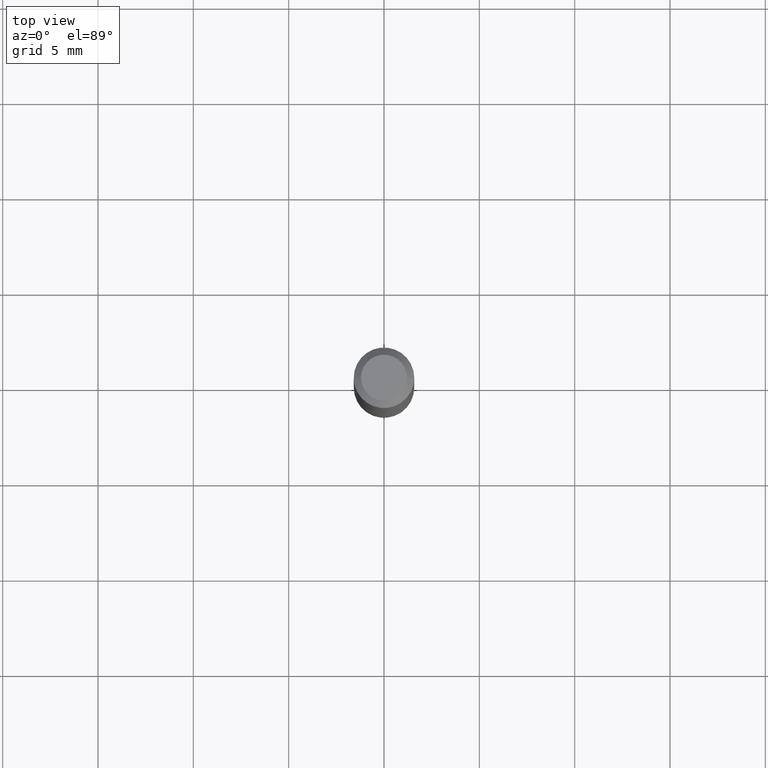
[diagram: clean part render]
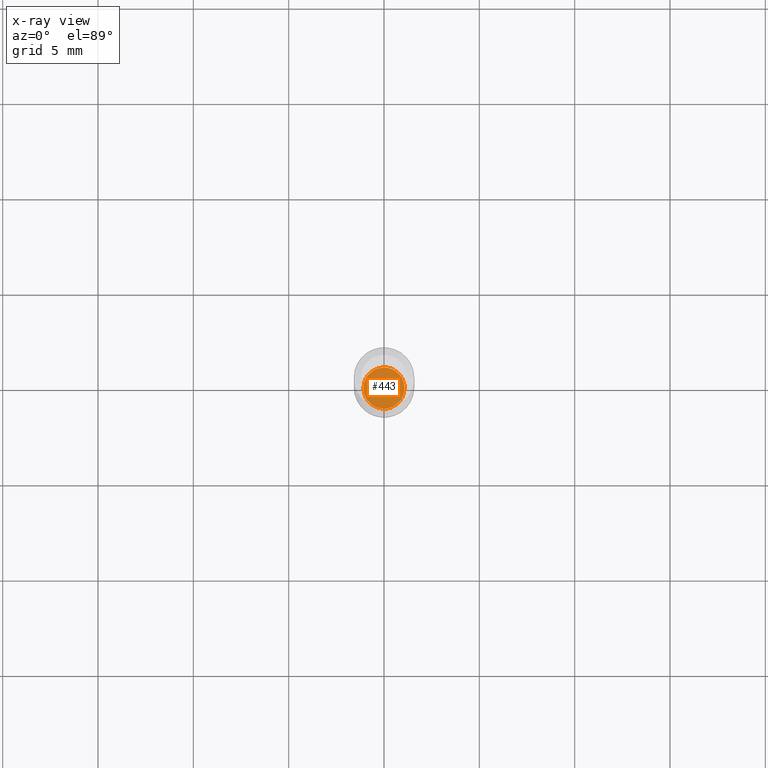
[diagram: x-ray — body ghosted, one internal face saturated and labeled with its STEP entity id]
A machine part, top view, then the same camera in x-ray: the body is ghosted and one INTERNAL B-rep face — a face not visible from any outside direction — is saturated and labeled: STEP entity #443.
In plain terms, the highlighted planar face has unit normal (0, -0, -1).
Its self-contained STEP definition (entity closure, byte-faithful):
#5 = CARTESIAN_POINT ( 'NONE',  ( 3.044608663700495534E-29, -4.346894266859716647E-15, -1.245000000000000329 ) ) ;
#7 = PLANE ( 'NONE',  #281 ) ;
#19 = VERTEX_POINT ( 'NONE', #262 ) ;
#44 = CIRCLE ( 'NONE', #393, 0.04249999999999999611 ) ;
#49 = DIRECTION ( 'NONE',  ( -2.445468806185136597E-29, 3.491481338843145583E-15, 1.000000000000000000 ) ) ;
#63 = ORIENTED_EDGE ( 'NONE', *, *, #141, .T. ) ;
#64 = CARTESIAN_POINT ( 'NONE',  ( -0.04249999999999999611, -4.490077474864174959E-15, -1.245000000000000329 ) ) ;
#65 = EDGE_LOOP ( 'NONE', ( #264, #63 ) ) ;
#73 = DIRECTION ( 'NONE',  ( -2.445468806185136597E-29, 3.491481338843145583E-15, 1.000000000000000000 ) ) ;
#116 = VERTEX_POINT ( 'NONE', #64 ) ;
#128 = CARTESIAN_POINT ( 'NONE',  ( 2.967759138016967261E-16, 0.04249999999999565237, -1.245000000000000551 ) ) ;
#141 = EDGE_CURVE ( 'NONE', #116, #19, #44, .T. ) ;
#153 = AXIS2_PLACEMENT_3D ( 'NONE', #5, #49, #197 ) ;
#197 = DIRECTION ( 'NONE',  ( 1.000000000000000000, -6.982962677686265133E-15, 0.000000000000000000 ) ) ;
#244 = EDGE_CURVE ( 'NONE', #19, #116, #251, .T. ) ;
#251 = CIRCLE ( 'NONE', #153, 0.04249999999999999611 ) ;
#256 = DIRECTION ( 'NONE',  ( 2.438088387897960049E-29, -3.491481338843145188E-15, -1.000000000000000000 ) ) ;
#257 = DIRECTION ( 'NONE',  ( 1.000000000000000000, -6.982962677686265133E-15, 0.000000000000000000 ) ) ;
#260 = FACE_OUTER_BOUND ( 'NONE', #65, .T. ) ;
#262 = CARTESIAN_POINT ( 'NONE',  ( 0.04249999999999999611, -4.643670180661383298E-15, -1.245000000000000329 ) ) ;
#264 = ORIENTED_EDGE ( 'NONE', *, *, #244, .T. ) ;
#281 = AXIS2_PLACEMENT_3D ( 'NONE', #128, #256, #402 ) ;
#289 = CARTESIAN_POINT ( 'NONE',  ( 3.044608663700495534E-29, -4.346894266859716647E-15, -1.245000000000000329 ) ) ;
#393 = AXIS2_PLACEMENT_3D ( 'NONE', #289, #73, #257 ) ;
#402 = DIRECTION ( 'NONE',  ( -1.000000000000000000, 6.982962677686265922E-15, -4.876176775795935793E-29 ) ) ;
#443 = ADVANCED_FACE ( 'NONE', ( #260 ), #7, .F. ) ;